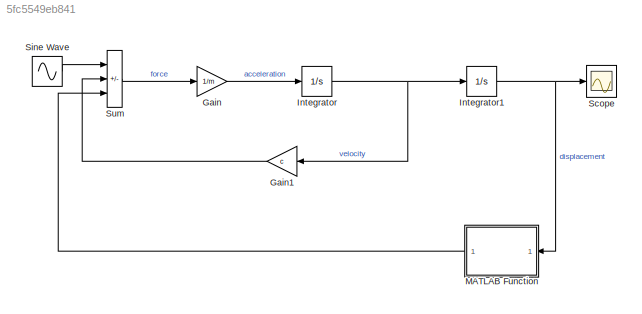
MODEL slx_5fc5549eb841
KIND model
CONFIG AbsTol = auto
CONFIG EnableMultiTasking = off
CONFIG FixedStep = auto
CONFIG MaxStep = 0.003
CONFIG MinStep = 0.001
CONFIG RelTol = 1e-3
CONFIG SampleTimeConstraint = Unconstrained
CONFIG SolverName = VariableStepAuto
CONFIG StartTime = 0.0
CONFIG StopTime = 10
BLOCK [Gain] Gain
  Gain = 1/m
BLOCK [Gain] Gain1
  Gain = c
BLOCK [Integrator] Integrator
BLOCK [Integrator] Integrator1
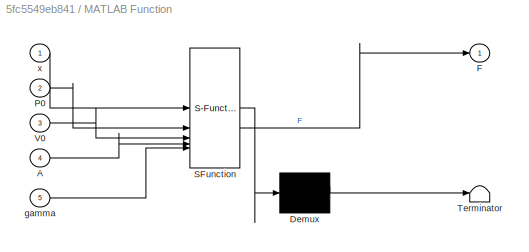
BLOCK [SubSystem] MATLAB Function
  ErrorFcn = Stateflow.Translate.translate
  PermitHierarchicalResolution = ExplicitOnly
  SFBlockType = MATLAB Function
  TreatAsAtomicUnit = on
BLOCK [Demux] MATLAB Function/ Demux 
  Outputs = 1
BLOCK [S-Function] MATLAB Function/ SFunction 
  EnableBusSupport = off
  FunctionName = sf_sfun
  PortCounts = [5 2]
  SFcnIsStateOwnerBlock = off
  SFunctionDeploymentMode = off
  Tag = Stateflow S-Function 2
BLOCK [Terminator] MATLAB Function/ Terminator 
BLOCK [Inport] MATLAB Function/A
  Port = 4
BLOCK [Outport] MATLAB Function/F
BLOCK [Inport] MATLAB Function/P0
  Port = 2
BLOCK [Inport] MATLAB Function/V0
  Port = 3
BLOCK [Inport] MATLAB Function/gamma
  Port = 5
BLOCK [Inport] MATLAB Function/x
BLOCK [Scope] Scope
  ActiveDisplayYMaximum = 1
  ActiveDisplayYMinimum = -1
  Floating = off
  GraphicalSettings = {"Style":{"BackgroundColor":[0.12941176470588237,0.12941176470588237,0.12941176470588237],"AxesColor":[0.07058823529411765,0.07058823529411765,0.07058823529411765],"LabelsColor":[0.8509803921568627,0.8509803921568627,0.8509803921568627],"PreserveColors":false,"Visible":[true],"LineStyle":["-"],"LineWidth":[1.5],"BarWidth":[0.9],"LineColor":["auto"],"LineFaceAlpha":[1],"LineEdgeAlpha":[1],"Marker":...<+1906ch>
  MultipleDisplayCache = [{"MaxYLimMag":1,"MaxYLimReal":1,"MinYLimMag":0,"MinYLimReal":-1,"PlotAsMagnitudePhase":false,"ShowGrid":true,"ShowLegend":false,"Title":"%<SignalLabel>","YLabel":""}]
  NumInputPorts = 1
  ScopeFrameLocation = window
  WasSavedAsWebScope = on
  WindowPosition = [680.000000,404.000000,560.000000,420.000000,]
BLOCK [Sin] Sine Wave
  Amplitude = 10
  Frequency = 10
  SampleTime = 0
BLOCK [Sum] Sum
  IconShape = rectangular
  Inputs = |+--
LINE Gain1:1 -> Sum:2
LINE Gain:1 -> Integrator:1
NET Integrator1:1 -> MATLAB Function:1, Scope:1
NET Integrator:1 -> Gain1:1, Integrator1:1
LINE MATLAB Function:1 -> Sum:3
LINE Sine Wave:1 -> Sum:1
LINE Sum:1 -> Gain:1
note: NET lines group one-source signal fan-out (src -> all destinations, sorted); 1:1 wires keep LINE
CHART MATLAB Function states=1 transitions=1
  STATE_LABEL 'eML_blk_kernel()'
  STATE_LABEL 'SCRIPT:\nfunction F = airSpringForce(x, P0, V0, A, gamma)\n% Nonlinear Air Spring Force Model\n% x = displacement\n% P0 = initial pressure\n% V0 = initial chamber volume\n% A = diaphragm area\n% gamma = polytropic index\n\n\n    % Avoid division by zero\n    if V0 - A*x <= 0\n        F = 0;  % or a very small value\n    else\n        F = (gamma*P0*A^2)/(V0 - A*x) * x;\n    end\nend\n\n\n'
CHART  states=0 transitions=0
